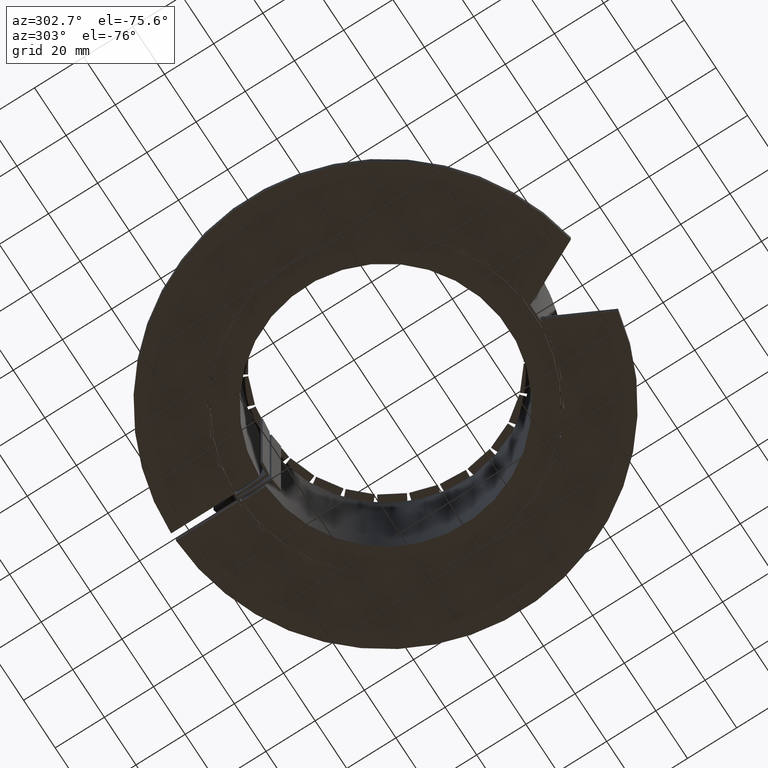
[diagram: clean part render]
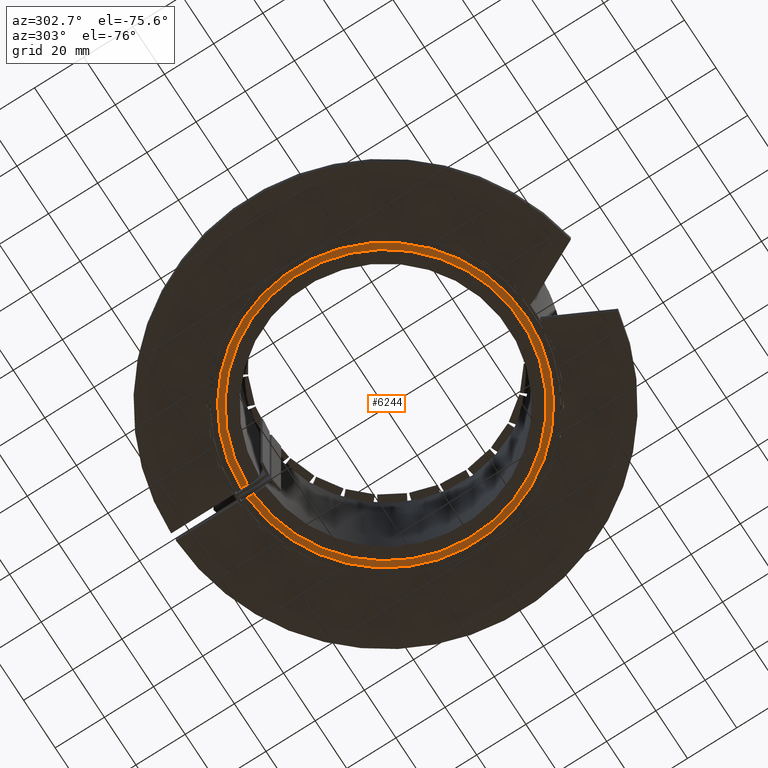
[diagram: same view with one face highlighted and labeled with its STEP entity id]
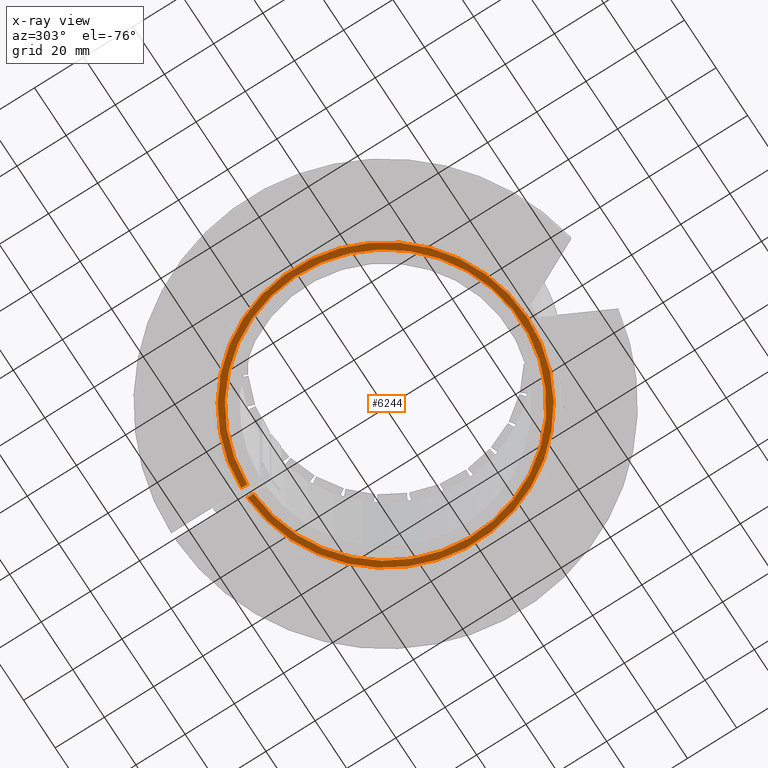
[diagram: x-ray of the same camera — body ghosted, the highlighted face saturated]
A machine part, auxiliary view. The second image highlights one B-rep face of the part: STEP entity #6244.
The next image is the same camera in x-ray: the body ghosted, the highlighted face saturated — about 0% of this face is hidden behind the body in this view.
In plain terms, the highlighted planar face has unit normal (0, 0, 1).
Its self-contained STEP definition (entity closure, byte-faithful):
#6012=CARTESIAN_POINT('',(-2.000000000000008,57.465206864675949,-29.950000000000003));
#6013=VERTEX_POINT('',#6012);
#6054=CARTESIAN_POINT('',(1.999999999999993,57.465206864675949,-29.950000000000003));
#6055=VERTEX_POINT('',#6054);
#6136=CARTESIAN_POINT('',(-8.312795E-016,0.0,-29.950000000000003));
#6137=DIRECTION('',(3.357952E-020,-9.648272E-019,1.0));
#6138=DIRECTION('',(-0.034782608695652,0.999394901994364,9.654113E-019));
#6139=AXIS2_PLACEMENT_3D('',#6136,#6137,#6138);
#6140=CIRCLE('',#6139,57.499999999999986);
#6141=EDGE_CURVE('',#6013,#6055,#6140,.T.);
#6152=CARTESIAN_POINT('',(-2.000000000000008,54.963624334645182,-29.950000000000003));
#6153=VERTEX_POINT('',#6152);
#6154=CARTESIAN_POINT('',(-2.000000000000008,54.963624334645182,-29.950000000000003));
#6155=DIRECTION('',(0.0,1.0,0.0));
#6156=VECTOR('',#6155,2.501582530030767);
#6157=LINE('',#6154,#6156);
#6158=EDGE_CURVE('',#6153,#6013,#6157,.T.);
#6183=CARTESIAN_POINT('',(1.999999999999993,54.963624334645182,-29.950000000000003));
#6184=VERTEX_POINT('',#6183);
#6185=CARTESIAN_POINT('',(1.999999999999992,57.465206864675949,-29.950000000000003));
#6186=DIRECTION('',(0.0,-1.0,0.0));
#6187=VECTOR('',#6186,2.501582530030774);
#6188=LINE('',#6185,#6187);
#6189=EDGE_CURVE('',#6055,#6184,#6188,.T.);
#6227=CARTESIAN_POINT('',(6.016257E-016,-0.106308487874064,-29.950000000000003));
#6228=DIRECTION('',(0.0,0.0,1.0));
#6229=DIRECTION('',(1.0,0.0,0.0));
#6230=AXIS2_PLACEMENT_3D('',#6227,#6228,#6229);
#6231=PLANE('',#6230);
#6232=ORIENTED_EDGE('',*,*,#6189,.F.);
#6233=ORIENTED_EDGE('',*,*,#6141,.F.);
#6234=ORIENTED_EDGE('',*,*,#6158,.F.);
#6235=CARTESIAN_POINT('',(-8.312795E-016,0.0,-29.950000000000003));
#6236=DIRECTION('',(3.670159E-020,-1.008626E-018,1.0));
#6237=DIRECTION('',(-0.036363636363636,0.999338624266276,1.009294E-018));
#6238=AXIS2_PLACEMENT_3D('',#6235,#6236,#6237);
#6239=CIRCLE('',#6238,55.0);
#6240=EDGE_CURVE('',#6153,#6184,#6239,.T.);
#6241=ORIENTED_EDGE('',*,*,#6240,.T.);
#6242=EDGE_LOOP('',(#6232,#6233,#6234,#6241));
#6243=FACE_OUTER_BOUND('',#6242,.T.);
#6244=ADVANCED_FACE('',(#6243),#6231,.F.);